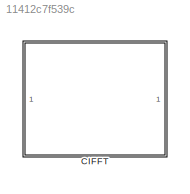
MODEL slx_11412c7f539c
KIND library
CONFIG AbsTol = auto
CONFIG EnableMultiTasking = off
CONFIG FixedStep = auto
CONFIG MaxStep = auto
CONFIG MinStep = auto
CONFIG RelTol = 1e-3
CONFIG SampleTimeConstraint = Unconstrained
CONFIG SolverName = VariableStepAuto
CONFIG StartTime = 0.0
CONFIG StopTime = 10.0
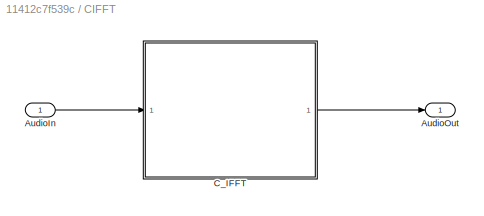
BLOCK [SubSystem] CIFFT
BLOCK [Inport] CIFFT/AudioIn
BLOCK [Outport] CIFFT/AudioOut
  VectorParamsAs1DForOutWhenUnconnected = off
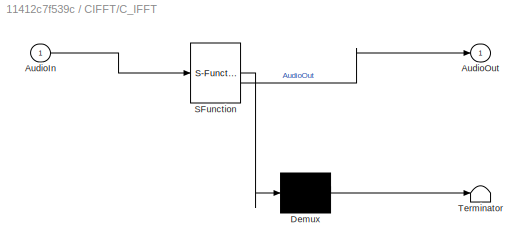
BLOCK [SubSystem] CIFFT/C_IFFT
  ErrorFcn = Stateflow.Translate.translate
  PermitHierarchicalResolution = ExplicitOnly
  SFBlockType = MATLAB Function
  TreatAsAtomicUnit = on
BLOCK [Demux] CIFFT/C_IFFT/ Demux 
  Outputs = 1
BLOCK [S-Function] CIFFT/C_IFFT/ SFunction 
  EnableBusSupport = off
  FunctionName = sf_sfun
  Parameters = fftSize,twiddleStride
  PortCounts = [1 2]
  SFcnIsStateOwnerBlock = off
  SFunctionDeploymentMode = off
  Tag = Stateflow S-Function 2
BLOCK [Terminator] CIFFT/C_IFFT/ Terminator 
BLOCK [Inport] CIFFT/C_IFFT/AudioIn
BLOCK [Outport] CIFFT/C_IFFT/AudioOut
  VectorParamsAs1DForOutWhenUnconnected = off
LINE CIFFT/AudioIn:1 -> CIFFT/C_IFFT:1
LINE CIFFT/C_IFFT:1 -> CIFFT/AudioOut:1
CHART CIFFT/C_IFFT states=1 transitions=1
  STATE_LABEL 'eML_blk_kernel()'
  STATE_LABEL 'SCRIPT:\nfunction AudioOut = c_ifft(AudioIn, fftSize, twiddleStride)\n    % Cast input to complex if needed\n    if (isreal(AudioIn))\n        input = complex(AudioIn);\n    else \n        input = AudioIn;\n    end\n    \n    % nullcopy copies type, size, and complexity of input to output\n    AudioOut = coder.nullcopy(input);\n    [frameSize, numChannels] = size(AudioIn);\n    \n    % Set correct data types\n ...<+638ch>'
CHART  states=0 transitions=0
